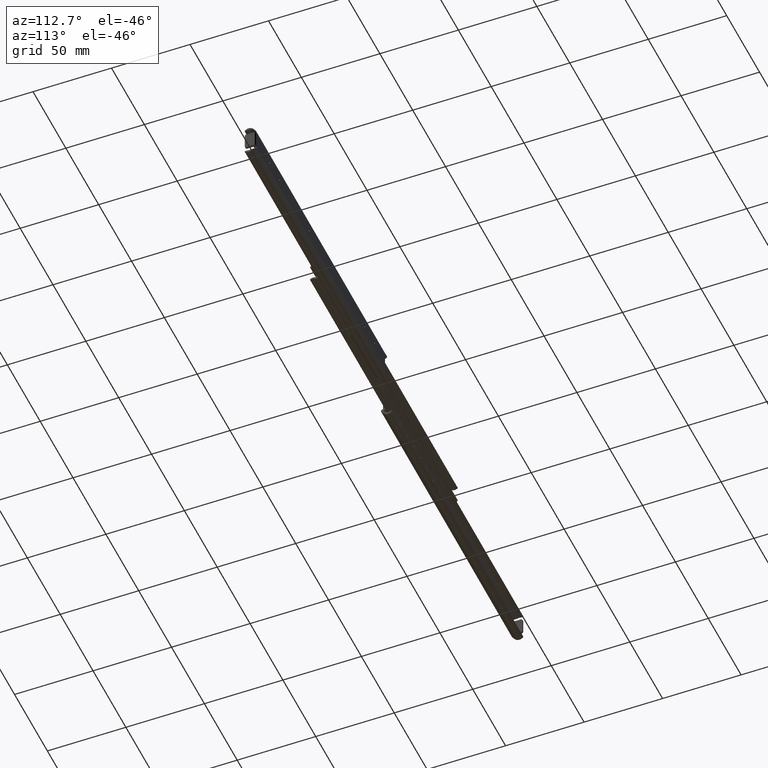
[diagram: clean part render]
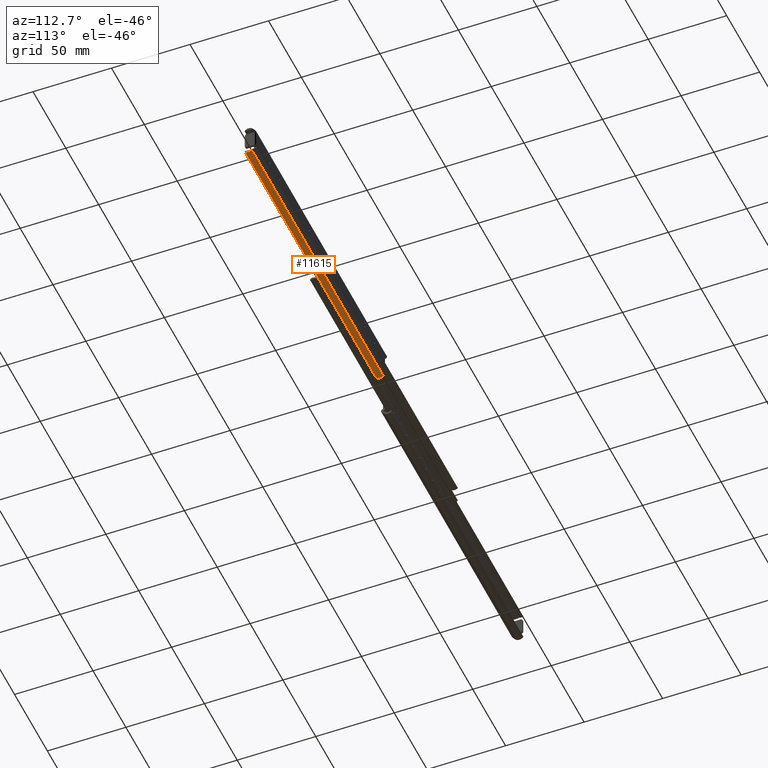
[diagram: same view with one face highlighted and labeled with its STEP entity id]
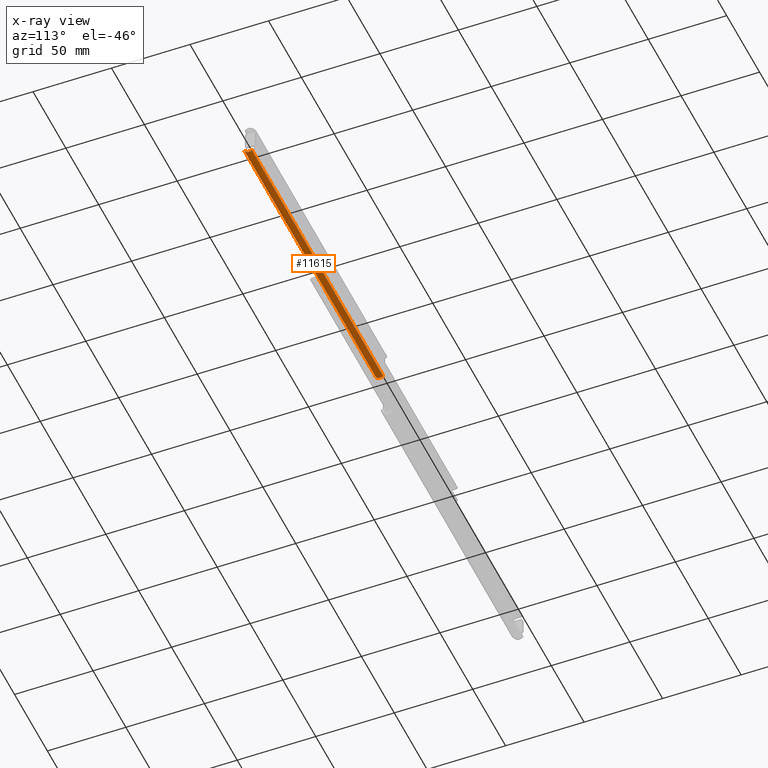
[diagram: x-ray of the same camera — body ghosted, the highlighted face saturated]
A machine part, auxiliary view. The second image highlights one B-rep face of the part: STEP entity #11615.
The next image is the same camera in x-ray: the body ghosted, the highlighted face saturated — about 0% of this face is hidden behind the body in this view.
In plain terms, the highlighted face is a freeform B-spline surface patch.
Its self-contained STEP definition (entity closure, byte-faithful):
#10242=CARTESIAN_POINT('',(199.978470043576490,-7.078071239486540,-8.522037986979019));
#10243=VERTEX_POINT('',#10242);
#10257=CARTESIAN_POINT('',(200.0,-6.945557355833350,-8.728427000000210));
#10258=VERTEX_POINT('',#10257);
#10259=CARTESIAN_POINT('',(199.978470043576490,-7.078071239486540,-8.522037986979019));
#10260=CARTESIAN_POINT('',(199.993242560200510,-7.037063546983049,-8.592073159033577));
#10261=CARTESIAN_POINT('',(200.0,-6.992917199756236,-8.660929248244676));
#10262=CARTESIAN_POINT('',(200.0,-6.945557355833550,-8.728427000000000));
#10263=QUASI_UNIFORM_CURVE('',3,(#10259,#10260,#10261,#10262),.UNSPECIFIED.,.F.,.U.);
#10264=EDGE_CURVE('',#10243,#10258,#10263,.T.);
#10438=CARTESIAN_POINT('',(0.0,-2.466980000000175,-9.201561000000000));
#10439=VERTEX_POINT('',#10438);
#10445=CARTESIAN_POINT('',(0.0,-7.078071239486619,-8.522037986978919));
#10446=VERTEX_POINT('',#10445);
#10447=CARTESIAN_POINT('',(0.0,-7.078071239486623,-8.522037986978919));
#10448=CARTESIAN_POINT('',(0.0,-6.353743143967781,-9.759084982229698));
#10449=CARTESIAN_POINT('',(0.0,-4.935554901319296,-9.968079161169062));
#10450=CARTESIAN_POINT('',(0.0,-3.517366658670809,-10.177073340108425));
#10451=CARTESIAN_POINT('',(0.0,-2.466980000000175,-9.201561000000000));
#10459=(BOUNDED_CURVE()B_SPLINE_CURVE(2,(#10447,#10448,#10449,#10450,#10451),.UNSPECIFIED.,.F.,.U.)B_SPLINE_CURVE_WITH_KNOTS((3,2,3),(0.0,0.500000000000000,1.0),.UNSPECIFIED.)CURVE()GEOMETRIC_REPRESENTATION_ITEM()RATIONAL_B_SPLINE_CURVE((1.0,0.901581331480265,1.0,0.901581331480265,1.0))REPRESENTATION_ITEM(''));
#10460=EDGE_CURVE('',#10446,#10439,#10459,.T.);
#11157=CARTESIAN_POINT('',(200.0,-2.466979999999921,-9.201561000000101));
#11158=VERTEX_POINT('',#11157);
#11159=CARTESIAN_POINT('',(200.0,-6.945557355833351,-8.728427000000211));
#11160=CARTESIAN_POINT('',(200.000000000000030,-6.165119425343325,-9.840715414181654));
#11161=CARTESIAN_POINT('',(200.0,-4.813864144514566,-9.983467106648732));
#11162=CARTESIAN_POINT('',(200.000000000000030,-3.462608863685807,-10.126218799115806));
#11163=CARTESIAN_POINT('',(200.0,-2.466979999999921,-9.201561000000101));
#11171=(BOUNDED_CURVE()B_SPLINE_CURVE(2,(#11159,#11160,#11161,#11162,#11163),.UNSPECIFIED.,.F.,.U.)B_SPLINE_CURVE_WITH_KNOTS((3,2,3),(0.0,0.500000000000000,1.0),.UNSPECIFIED.)CURVE()GEOMETRIC_REPRESENTATION_ITEM()RATIONAL_B_SPLINE_CURVE((1.0,0.910272306830958,1.0,0.910272306830958,1.0))REPRESENTATION_ITEM(''));
#11172=EDGE_CURVE('',#10258,#11158,#11171,.T.);
#11346=CARTESIAN_POINT('',(199.978470043576490,-7.078071239486540,-8.522037986979019));
#11347=CARTESIAN_POINT('',(0.0,-7.078071239486619,-8.522037986978919));
#11348=QUASI_UNIFORM_CURVE('',1,(#11346,#11347),.UNSPECIFIED.,.F.,.U.);
#11349=EDGE_CURVE('',#10243,#10446,#11348,.T.);
#11363=CARTESIAN_POINT('',(200.0,-2.466979999999921,-9.201561000000101));
#11364=CARTESIAN_POINT('',(0.0,-2.466980000000175,-9.201561000000000));
#11365=QUASI_UNIFORM_CURVE('',1,(#11363,#11364),.UNSPECIFIED.,.F.,.U.);
#11366=EDGE_CURVE('',#11158,#10439,#11365,.T.);
#11594=CARTESIAN_POINT('',(205.0,-7.141462609117079,-8.408147353251051));
#11595=CARTESIAN_POINT('',(-5.125000000000000,-7.141462609117079,-8.408147353251051));
#11596=CARTESIAN_POINT('',(205.000000000000060,-5.220518824749028,-12.043808732040411));
#11597=CARTESIAN_POINT('',(-5.124999999999999,-5.220518824749028,-12.043808732040411));
#11598=CARTESIAN_POINT('',(205.0,-2.356403654017433,-9.093401476641938));
#11599=CARTESIAN_POINT('',(-5.125000000000000,-2.356403654017433,-9.093401476641938));
#11607=(BOUNDED_SURFACE()B_SPLINE_SURFACE(1,2,((#11594,#11596,#11598),(#11595,#11597,#11599)),.UNSPECIFIED.,.F.,.F.,.U.)B_SPLINE_SURFACE_WITH_KNOTS((2,2),(3,3),(0.0,210.125000000000110),(0.0,6.088829121458419),.UNSPECIFIED.)GEOMETRIC_REPRESENTATION_ITEM()RATIONAL_B_SPLINE_SURFACE(((1.0,0.587785252292473,1.0),(1.0,0.587785252292473,1.0)))REPRESENTATION_ITEM('')SURFACE());
#11608=ORIENTED_EDGE('',*,*,#10264,.F.);
#11609=ORIENTED_EDGE('',*,*,#11349,.T.);
#11610=ORIENTED_EDGE('',*,*,#10460,.T.);
#11611=ORIENTED_EDGE('',*,*,#11366,.F.);
#11612=ORIENTED_EDGE('',*,*,#11172,.F.);
#11613=EDGE_LOOP('',(#11608,#11609,#11610,#11611,#11612));
#11614=FACE_OUTER_BOUND('',#11613,.T.);
#11615=ADVANCED_FACE('',(#11614),#11607,.T.);